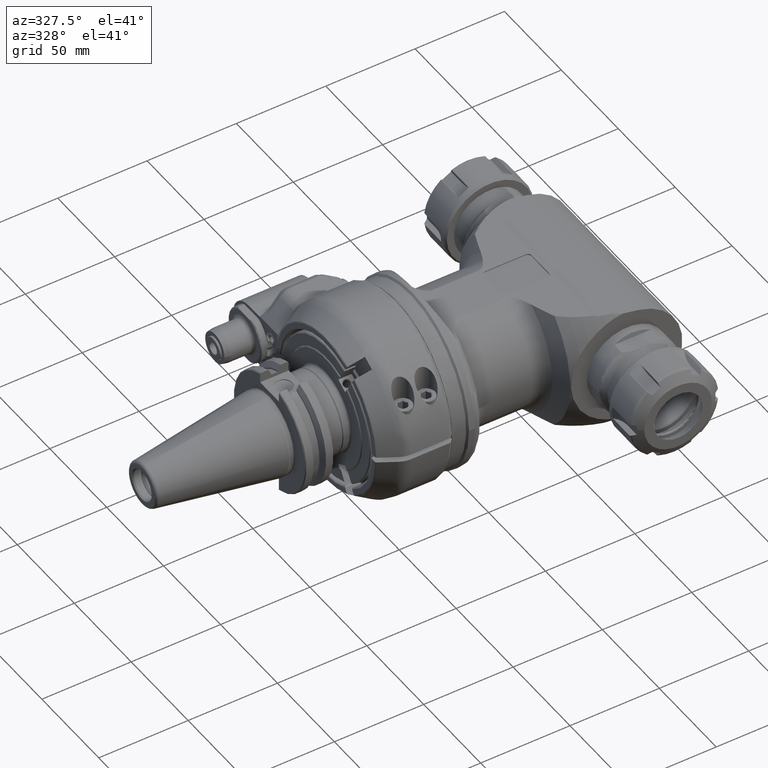
[diagram: clean part render]
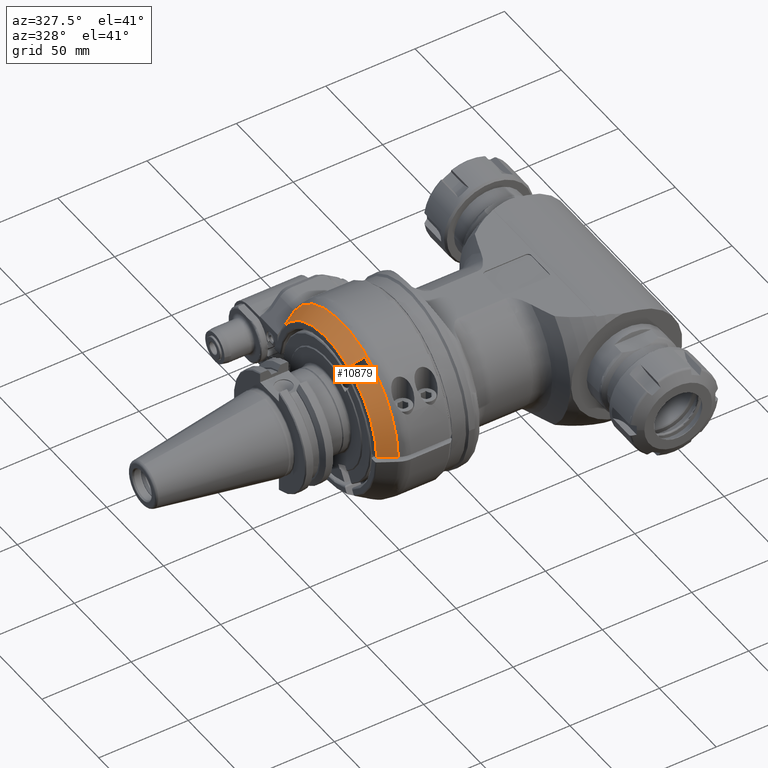
[diagram: same view with one face highlighted and labeled with its STEP entity id]
A machine part, auxiliary view. The second image highlights one B-rep face of the part: STEP entity #10879.
In plain terms, the highlighted conical surface has half-angle 30 deg.
Its self-contained STEP definition (entity closure, byte-faithful):
#45=B_SPLINE_CURVE_WITH_KNOTS('',3,(#16458,#16459,#16460,#16461,#16462,
#16463,#16464,#16465,#16466,#16467),.UNSPECIFIED.,.F.,.F.,(4,3,3,4),(2.48991120121912E-6,
0.3333333333333,0.6666666666667,1.),.UNSPECIFIED.);
#60=B_SPLINE_CURVE_WITH_KNOTS('',3,(#17172,#17173,#17174,#17175,#17176,
#17177,#17178,#17179,#17180,#17181,#17182,#17183,#17184,#17185),
 .UNSPECIFIED.,.F.,.F.,(4,1,1,1,1,1,1,1,1,1,1,4),(0.,0.09090909090909,0.1818181818182,
0.2727272727273,0.3636363636364,0.4545454545455,0.5454545454545,0.6363636363636,
0.7272727272727,0.8181818181818,0.9090909090909,1.),.UNSPECIFIED.);
#68=B_SPLINE_CURVE_WITH_KNOTS('',3,(#17522,#17523,#17524,#17525,#17526,
#17527,#17528,#17529,#17530,#17531),.UNSPECIFIED.,.F.,.F.,(4,3,3,4),(7.62079814927292E-6,
0.3333333333333,0.6666666666667,1.),.UNSPECIFIED.);
#69=B_SPLINE_CURVE_WITH_KNOTS('',3,(#17535,#17536,#17537,#17538,#17539,
#17540,#17541,#17542,#17543,#17544),.UNSPECIFIED.,.F.,.F.,(4,3,3,4),(0.,
0.3333333333333,0.6666666666667,0.999992885751949),.UNSPECIFIED.);
#480=CONICAL_SURFACE('',#11663,46.84048999,0.523598775598299);
#2314=FACE_OUTER_BOUND('',#2996,.T.);
#2996=EDGE_LOOP('',(#7466,#7467,#7468,#7469,#7470,#7471,#7472,#7473));
#3758=CIRCLE('',#11640,49.39230484541);
#3767=CIRCLE('',#11664,44.28867513459);
#3768=CIRCLE('',#11665,48.90747728811);
#3769=CIRCLE('',#11666,44.28867513459);
#4370=VERTEX_POINT('',#16448);
#4371=VERTEX_POINT('',#16457);
#4438=VERTEX_POINT('',#17062);
#4444=VERTEX_POINT('',#17122);
#4465=VERTEX_POINT('',#17519);
#4466=VERTEX_POINT('',#17521);
#4467=VERTEX_POINT('',#17532);
#4468=VERTEX_POINT('',#17534);
#5506=EDGE_CURVE('',#4371,#4370,#45,.T.);
#5599=EDGE_CURVE('',#4444,#4438,#60,.T.);
#5600=EDGE_CURVE('',#4438,#4370,#3758,.T.);
#5633=EDGE_CURVE('',#4465,#4444,#3767,.T.);
#5634=EDGE_CURVE('',#4465,#4466,#68,.T.);
#5635=EDGE_CURVE('',#4467,#4466,#3768,.T.);
#5636=EDGE_CURVE('',#4467,#4468,#69,.T.);
#5637=EDGE_CURVE('',#4371,#4468,#3769,.T.);
#7466=ORIENTED_EDGE('',*,*,#5599,.F.);
#7467=ORIENTED_EDGE('',*,*,#5633,.F.);
#7468=ORIENTED_EDGE('',*,*,#5634,.T.);
#7469=ORIENTED_EDGE('',*,*,#5635,.F.);
#7470=ORIENTED_EDGE('',*,*,#5636,.T.);
#7471=ORIENTED_EDGE('',*,*,#5637,.F.);
#7472=ORIENTED_EDGE('',*,*,#5506,.T.);
#7473=ORIENTED_EDGE('',*,*,#5600,.F.);
#10879=ADVANCED_FACE('',(#2314),#480,.T.);
#11640=AXIS2_PLACEMENT_3D('',#17187,#13180,#13181);
#11663=AXIS2_PLACEMENT_3D('',#17518,#13243,#13244);
#11664=AXIS2_PLACEMENT_3D('',#17520,#13245,#13246);
#11665=AXIS2_PLACEMENT_3D('',#17533,#13247,#13248);
#11666=AXIS2_PLACEMENT_3D('',#17545,#13249,#13250);
#13180=DIRECTION('center_axis',(1.,0.,0.));
#13181=DIRECTION('ref_axis',(0.,0.850334887822108,0.526241939180605));
#13243=DIRECTION('center_axis',(1.,0.,0.));
#13244=DIRECTION('ref_axis',(0.,-1.,0.));
#13245=DIRECTION('center_axis',(-1.,0.,0.));
#13246=DIRECTION('ref_axis',(0.,-0.429996871485802,0.902830377486504));
#13247=DIRECTION('center_axis',(-1.,0.,0.));
#13248=DIRECTION('ref_axis',(0.,-0.560693997365684,0.828023092261376));
#13249=DIRECTION('center_axis',(-1.,0.,0.));
#13250=DIRECTION('ref_axis',(0.,-0.999426290895549,0.0338687033523017));
#16448=CARTESIAN_POINT('',(149.902831980789,-49.3695164173452,1.5000000963112));
#16457=CARTESIAN_POINT('',(141.063096967131,-44.2632663030788,1.49999993762864));
#16458=CARTESIAN_POINT('Ctrl Pts',(141.063096966743,-44.2632663037562,1.5));
#16459=CARTESIAN_POINT('Ctrl Pts',(142.002134839099,-44.8057312890942,1.5));
#16460=CARTESIAN_POINT('Ctrl Pts',(142.955521802973,-45.3564740363296,1.5));
#16461=CARTESIAN_POINT('Ctrl Pts',(143.923142551408,-45.9154281690882,1.5));
#16462=CARTESIAN_POINT('Ctrl Pts',(144.890770527767,-46.4743864771166,1.5));
#16463=CARTESIAN_POINT('Ctrl Pts',(145.872632501333,-47.0415562933434,1.5));
#16464=CARTESIAN_POINT('Ctrl Pts',(146.869200473092,-47.6172104844693,1.5));
#16465=CARTESIAN_POINT('Ctrl Pts',(147.86576844485,-48.1928646755951,1.5));
#16466=CARTESIAN_POINT('Ctrl Pts',(148.8770424148,-48.77700324162,1.5));
#16467=CARTESIAN_POINT('Ctrl Pts',(149.9028210013,-49.36951007704,1.5));
#17062=CARTESIAN_POINT('',(149.902842959504,42.0000000008499,25.9923022781232));
#17122=CARTESIAN_POINT('',(141.06309700907,41.999999998209,14.0529977507965));
#17172=CARTESIAN_POINT('Ctrl Pts',(141.0630970144,42.00000000069,14.05299775252));
#17173=CARTESIAN_POINT('Ctrl Pts',(141.2386135921,42.00000000069,14.37235827333));
#17174=CARTESIAN_POINT('Ctrl Pts',(141.6037973733,41.99999999968,15.0172257416));
#17175=CARTESIAN_POINT('Ctrl Pts',(142.1942709887,42.00000000009,16.00153430544));
#17176=CARTESIAN_POINT('Ctrl Pts',(142.8299965681,41.99999999998,17.00533600281));
#17177=CARTESIAN_POINT('Ctrl Pts',(143.5132104614,42.00000000001,18.03022816822));
#17178=CARTESIAN_POINT('Ctrl Pts',(144.2465688984,42.,19.07822864138));
#17179=CARTESIAN_POINT('Ctrl Pts',(145.0329815842,42.,20.15144048478));
#17180=CARTESIAN_POINT('Ctrl Pts',(145.875736891,42.,21.25221310324));
#17181=CARTESIAN_POINT('Ctrl Pts',(146.7784357333,42.,22.38302869962));
#17182=CARTESIAN_POINT('Ctrl Pts',(147.7452762289,42.00000000002,23.54680229303));
#17183=CARTESIAN_POINT('Ctrl Pts',(148.7803540881,41.99999999994,24.74607945972));
#17184=CARTESIAN_POINT('Ctrl Pts',(149.5204134746,42.00000000012,25.5727314514));
#17185=CARTESIAN_POINT('Ctrl Pts',(149.9028429577,42.00000000012,25.99230227734));
#17187=CARTESIAN_POINT('Origin',(149.9028429622,0.,0.));
#17518=CARTESIAN_POINT('Origin',(145.4829699811,0.,0.));
#17519=CARTESIAN_POINT('',(141.063039568844,-19.0439746816787,39.985132738505));
#17520=CARTESIAN_POINT('Origin',(141.063097,0.,0.));
#17521=CARTESIAN_POINT('',(149.063097,-21.35995111525,43.9965205788));
#17522=CARTESIAN_POINT('Ctrl Pts',(141.06303951119,-19.0439751695998,39.9851325718249));
#17523=CARTESIAN_POINT('Ctrl Pts',(141.898783214688,-19.2859905028497,40.4043154252244));
#17524=CARTESIAN_POINT('Ctrl Pts',(142.752064462475,-19.5330594487672,40.832251392526));
#17525=CARTESIAN_POINT('Ctrl Pts',(143.622768108208,-19.785148175919,41.2688818759683));
#17526=CARTESIAN_POINT('Ctrl Pts',(144.493491660767,-20.0372426665546,41.7055223420572));
#17527=CARTESIAN_POINT('Ctrl Pts',(145.381638407933,-20.2943571679607,42.1508577218553));
#17528=CARTESIAN_POINT('Ctrl Pts',(146.288244656542,-20.5567911286025,42.6054066753184));
#17529=CARTESIAN_POINT('Ctrl Pts',(147.19485090515,-20.8192250892441,43.0599556287813));
#17530=CARTESIAN_POINT('Ctrl Pts',(148.1199166552,-21.0869785091215,43.5237181559091));
#17531=CARTESIAN_POINT('Ctrl Pts',(149.063097,-21.3599511152508,43.9965205787995));
#17532=CARTESIAN_POINT('',(149.063097,-27.42212894174,40.4965205788));
#17533=CARTESIAN_POINT('Origin',(149.063097,0.,0.));
#17534=CARTESIAN_POINT('',(141.063043333624,-25.1061544459901,36.485134137578));
#17535=CARTESIAN_POINT('Ctrl Pts',(149.063097,-27.4221289417415,40.4965205787991));
#17536=CARTESIAN_POINT('Ctrl Pts',(148.1207859132,-27.1494079138214,40.0241539021492));
#17537=CARTESIAN_POINT('Ctrl Pts',(147.196298862,-26.8818220232761,39.5606815443361));
#17538=CARTESIAN_POINT('Ctrl Pts',(146.289967578967,-26.6194676868642,39.1062705040848));
#17539=CARTESIAN_POINT('Ctrl Pts',(145.383636295933,-26.3571133504523,38.6518594638333));
#17540=CARTESIAN_POINT('Ctrl Pts',(144.495460781067,-26.0999905681738,38.2065097411435));
#17541=CARTESIAN_POINT('Ctrl Pts',(143.624444402758,-25.8478113282256,37.7697224849393));
#17542=CARTESIAN_POINT('Ctrl Pts',(142.75344661433,-25.5956374704746,37.3329445509738));
#17543=CARTESIAN_POINT('Ctrl Pts',(141.899607230021,-25.3484069440386,36.9047287180047));
#17544=CARTESIAN_POINT('Ctrl Pts',(141.063043279831,-25.1061540830241,36.4851344544487));
#17545=CARTESIAN_POINT('Origin',(141.063097,0.,0.));